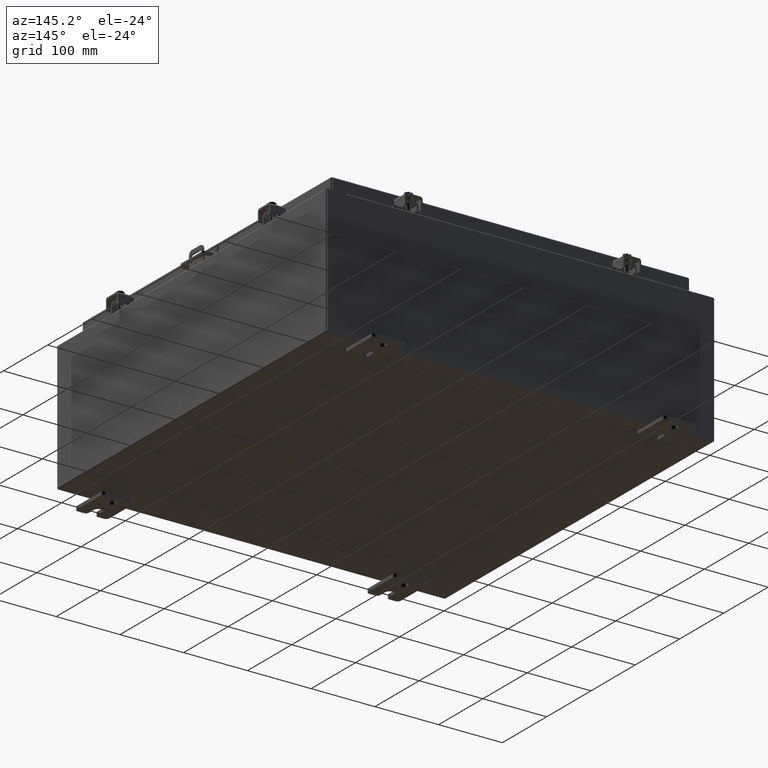
[diagram: clean part render]
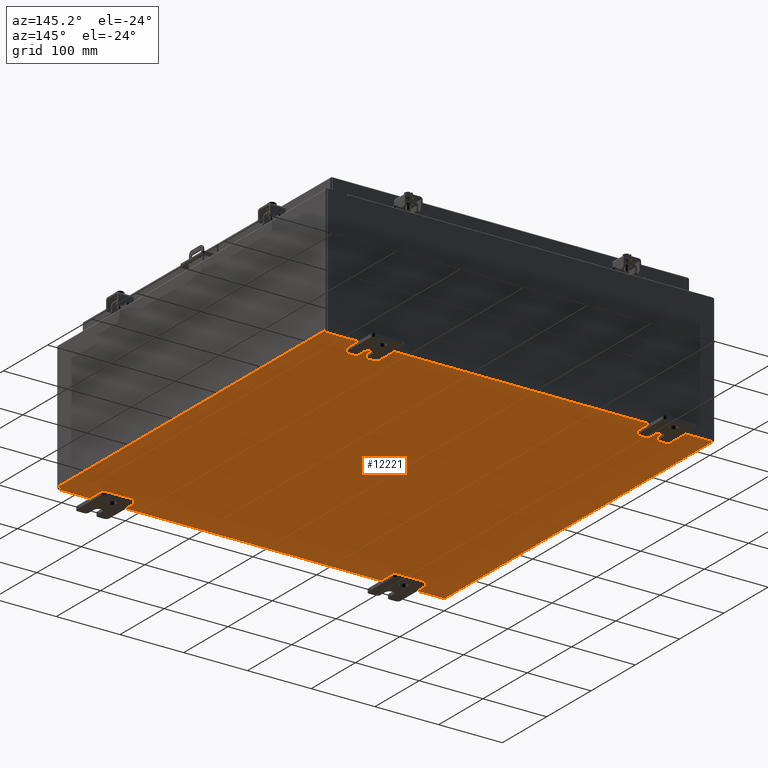
[diagram: same view with one face highlighted and labeled with its STEP entity id]
A machine part, auxiliary view. The second image highlights one B-rep face of the part: STEP entity #12221.
In plain terms, the highlighted planar face has unit normal (0, 0, -1).
Its self-contained STEP definition (entity closure, byte-faithful):
#4 = LINE ( 'NONE', #17629, #19003 ) ;
#922 = DIRECTION ( 'NONE',  ( -1.000000000000000000, 0.0000000000000000000, -0.0000000000000000000 ) ) ;
#3399 = VERTEX_POINT ( 'NONE', #20322 ) ;
#4206 = VECTOR ( 'NONE', #15326, 39.37007874015748100 ) ;
#8966 = ORIENTED_EDGE ( 'NONE', *, *, #11682, .F. ) ;
#11682 = EDGE_CURVE ( 'NONE', #15796, #22386, #15618, .T. ) ;
#12082 = CARTESIAN_POINT ( 'NONE',  ( -12.00000000000000400, -11.92530000000000400, -0.07469999999999998900 ) ) ;
#12221 = ADVANCED_FACE ( 'NONE', ( #25714 ), #28208, .T. ) ;
#12788 = CARTESIAN_POINT ( 'NONE',  ( 11.91229999999999800, 11.92529999999999800, -0.07469999999999996100 ) ) ;
#13217 = CARTESIAN_POINT ( 'NONE',  ( 0.0000000000000000000, 0.0000000000000000000, -0.07469999999999998900 ) ) ;
#13650 = EDGE_CURVE ( 'NONE', #16523, #22386, #4, .T. ) ;
#13702 = EDGE_CURVE ( 'NONE', #15796, #3399, #24000, .T. ) ;
#15046 = EDGE_LOOP ( 'NONE', ( #29755, #15603, #8966, #16019 ) ) ;
#15326 = DIRECTION ( 'NONE',  ( -0.0000000000000000000, -1.000000000000000000, -0.0000000000000000000 ) ) ;
#15603 = ORIENTED_EDGE ( 'NONE', *, *, #13650, .T. ) ;
#15618 = LINE ( 'NONE', #27811, #28121 ) ;
#15750 = DIRECTION ( 'NONE',  ( 0.0000000000000000000, 0.0000000000000000000, -1.000000000000000000 ) ) ;
#15796 = VERTEX_POINT ( 'NONE', #22553 ) ;
#16019 = ORIENTED_EDGE ( 'NONE', *, *, #13702, .T. ) ;
#16273 = EDGE_CURVE ( 'NONE', #16523, #3399, #30168, .T. ) ;
#16523 = VERTEX_POINT ( 'NONE', #25588 ) ;
#17629 = CARTESIAN_POINT ( 'NONE',  ( -11.91230000000000400, -11.92530000000000400, -0.07469999999999996100 ) ) ;
#18347 = AXIS2_PLACEMENT_3D ( 'NONE', #13217, #15750, #922 ) ;
#19003 = VECTOR ( 'NONE', #30173, 39.37007874015748100 ) ;
#20322 = CARTESIAN_POINT ( 'NONE',  ( 11.91229999999998900, -11.92530000000000400, -0.07469999999999998900 ) ) ;
#22386 = VERTEX_POINT ( 'NONE', #30208 ) ;
#22553 = CARTESIAN_POINT ( 'NONE',  ( 11.91229999999999800, 11.92529999999999600, -0.07469999999999996100 ) ) ;
#22580 = VECTOR ( 'NONE', #32311, 39.37007874015748100 ) ;
#24000 = LINE ( 'NONE', #12788, #4206 ) ;
#25588 = CARTESIAN_POINT ( 'NONE',  ( -11.91230000000000400, -11.92530000000000000, -0.07469999999999996100 ) ) ;
#25714 = FACE_OUTER_BOUND ( 'NONE', #15046, .T. ) ;
#27811 = CARTESIAN_POINT ( 'NONE',  ( -12.00000000000000400, 11.92529999999999800, -0.07469999999999998900 ) ) ;
#28121 = VECTOR ( 'NONE', #30433, 39.37007874015748100 ) ;
#28208 = PLANE ( 'NONE',  #18347 ) ;
#29755 = ORIENTED_EDGE ( 'NONE', *, *, #16273, .F. ) ;
#30168 = LINE ( 'NONE', #12082, #22580 ) ;
#30173 = DIRECTION ( 'NONE',  ( -0.0000000000000000000, 1.000000000000000000, -0.0000000000000000000 ) ) ;
#30208 = CARTESIAN_POINT ( 'NONE',  ( -11.91230000000000400, 11.92529999999999800, -0.07469999999999998900 ) ) ;
#30433 = DIRECTION ( 'NONE',  ( -1.000000000000000000, -0.0000000000000000000, -0.0000000000000000000 ) ) ;
#32311 = DIRECTION ( 'NONE',  ( 1.000000000000000000, 0.0000000000000000000, 0.0000000000000000000 ) ) ;